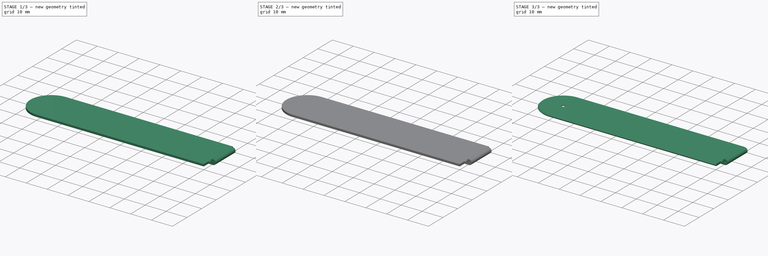
[diagram: build sequence overview — one tinted view per stage of 3, left to right]
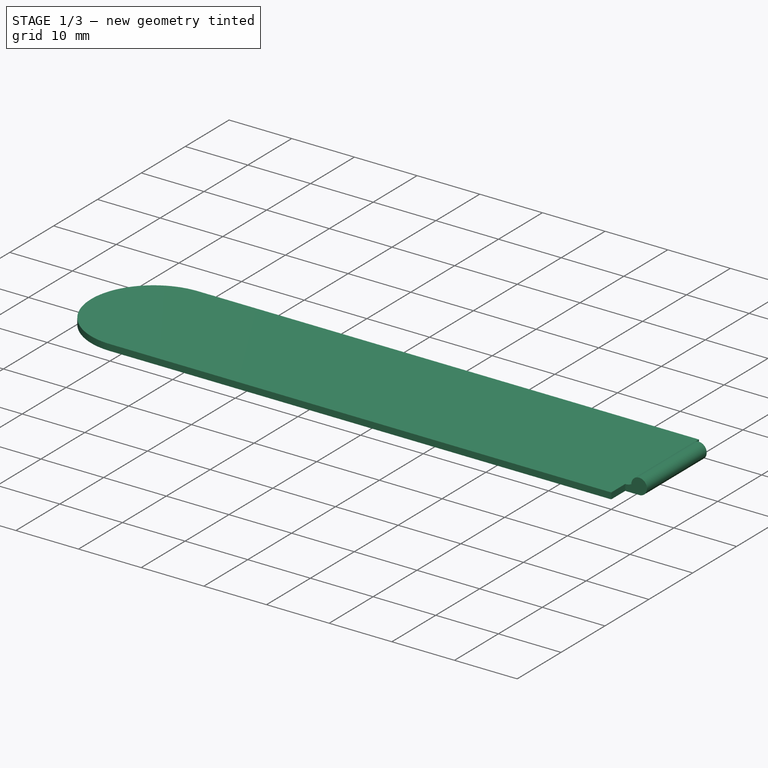
[diagram: stage 1 of 3 — iso view after this stage's code; geometry added in this stage tinted green]
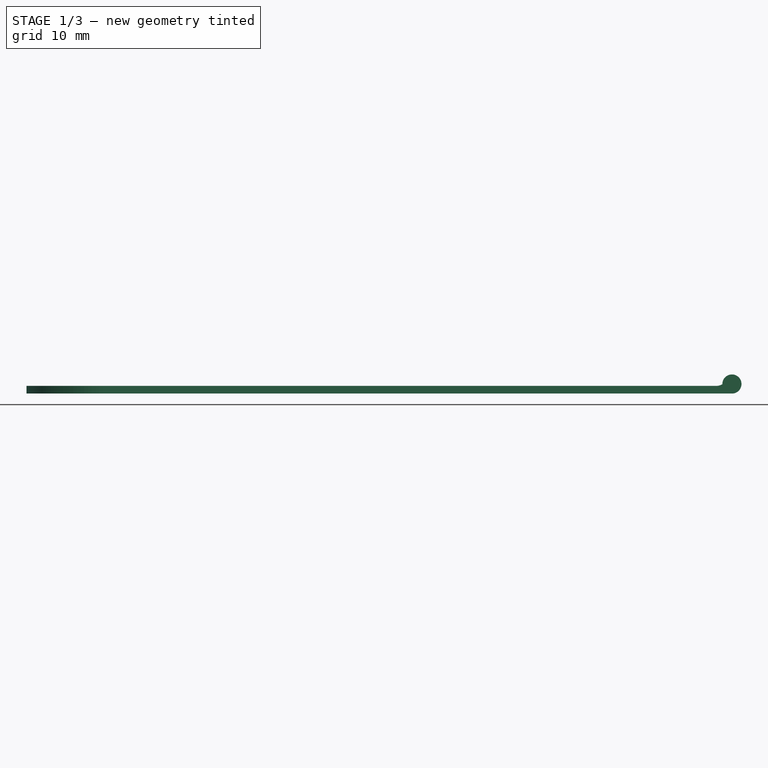
[diagram: stage 1 of 3 — front view after this stage's code; geometry added in this stage tinted green]
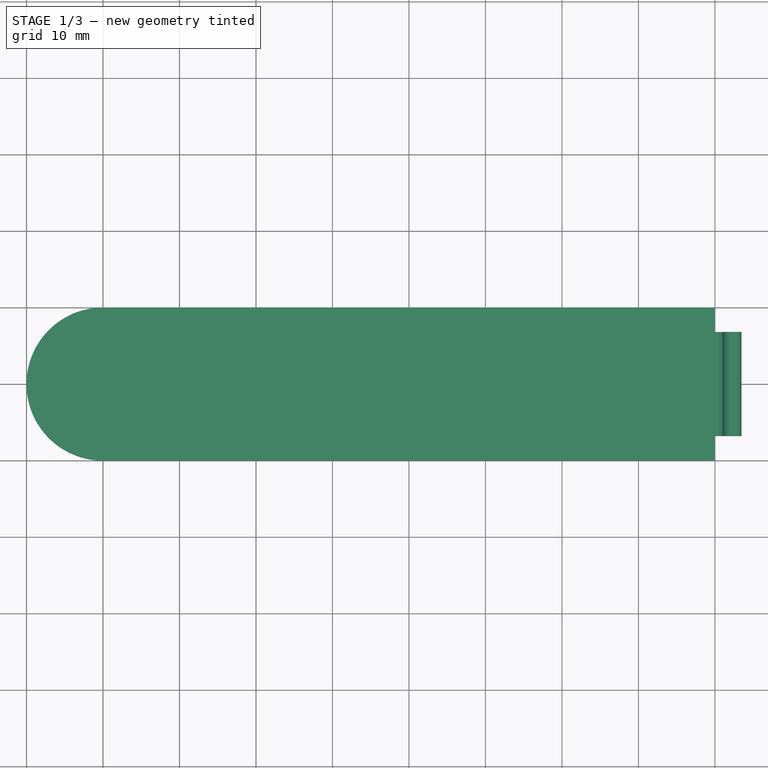
[diagram: stage 1 of 3 — top view after this stage's code; geometry added in this stage tinted green]
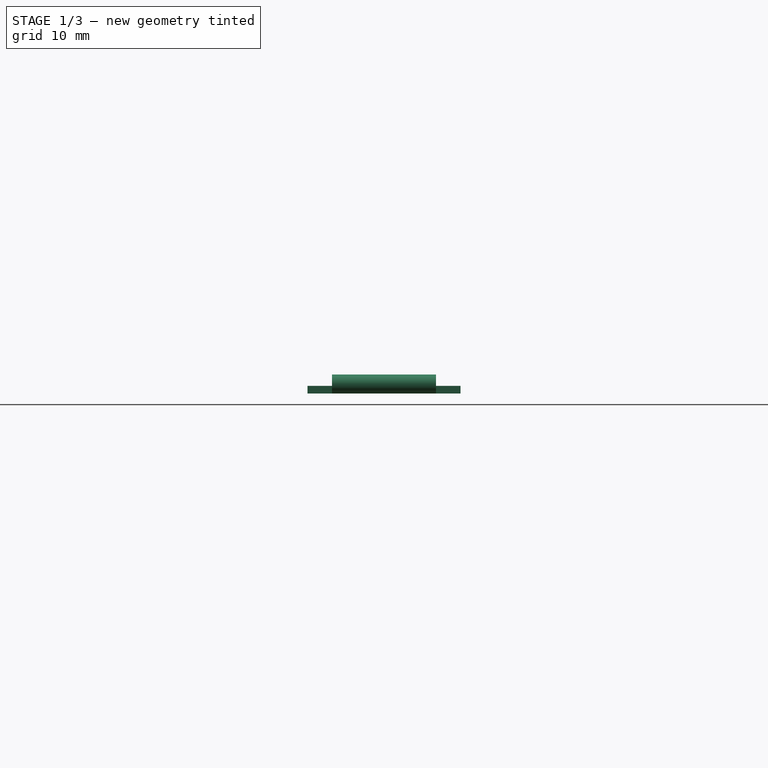
[diagram: stage 1 of 3 — right view after this stage's code; geometry added in this stage tinted green]
FCSTD DOCUMENT  (FreeCAD 0.19R)
Label: right-band
License: All rights reserved
LicenseURL: http://en.wikipedia.org/wiki/All_rights_reserved
objects: PartDesign::SubtractiveCylinder×3, Sketcher::SketchObject×2, PartDesign::Pad×2, PartDesign::Chamfer×1, PartDesign::Body×1
note: 14 computed .brp shape members not serialized (recipe doc carries the construction recipe); baked Part::Feature solids carry a one-line shape summary decoded from their .brp

FEATURE [Sketcher::SketchObject] Sketch  label="Sketch_base"
  sketch-geometry (4):
    g0: LineSegment StartX=0 StartY=10 StartZ=0 EndX=80 EndY=10 EndZ=0
    g1: LineSegment StartX=1.669e-13 StartY=-10 StartZ=0 EndX=80 EndY=-10 EndZ=0
    g2: LineSegment StartX=80 StartY=10 StartZ=0 EndX=80 EndY=-10 EndZ=0
    g3: ArcOfCircle CenterX=0 CenterY=0 CenterZ=0 NormalX=0 NormalY=0 NormalZ=1 AngleXU=0 Radius=10 StartAngle=1.5708 EndAngle=4.71239
  constraints (11):
    c: PointOnObject(g0,g-2)
    c: Horizontal(g0)
    c: PointOnObject(g1,g-2)
    c: Symmetric(g1,g0,g-1)
    c: Coincident(g1,g2)
    c: Coincident(g0,g2)
    c: Coincident(g3,g-1)
    c: Coincident(g3,g0)
    c: Coincident(g3,g1)
    c: DistanceX(g0,g0) = 80
    c: DistanceY(g2,g2) = 20
FEATURE [PartDesign::Pad] Pad  label="base"
  Length = 1
  Length2 = 100
  Profile = -> Sketch
  Type = 0
FEATURE [Sketcher::SketchObject] Sketch003  label="Sketch_pin"
  ExternalGeometry = -> [Sketch]
  MapMode = 3
  Placement = pos=(0,0,0) rot=(1,0,0;1.5708rad)
  Support = -> [Sketch]
  sketch-geometry (7):
    g0: LineSegment StartX=80 StartY=-2.2e-15 StartZ=0 EndX=82.25 EndY=-2.2e-15 EndZ=0
    g1: LineSegment StartX=80 StartY=1 StartZ=0 EndX=80 EndY=-2.2e-15 EndZ=0
    g2: LineSegment [constr] StartX=80 StartY=1 StartZ=0 EndX=80.9723 EndY=1 EndZ=0
    g3: LineSegment [constr] StartX=80.9723 StartY=1.23384 StartZ=0 EndX=80.9723 EndY=1 EndZ=0
    g4: ArcOfCircle CenterX=82.2222 CenterY=1.24969 CenterZ=0 NormalX=0 NormalY=0 NormalZ=1 AngleXU=0 Radius=1.25 StartAngle=4.73465 EndAngle=9.43746
    g5: LineSegment [constr] StartX=80 StartY=1 StartZ=0 EndX=80.9723 EndY=1.23384 EndZ=0
    g6: ArcOfCircle CenterX=80.1093 CenterY=2.68371 CenterZ=0 NormalX=0 NormalY=0 NormalZ=1 AngleXU=0 Radius=1.68725 StartAngle=4.64756 EndAngle=5.24928
  constraints (20):
    c: Coincident(g1,g0)
    c: Horizontal(g0)
    c: Coincident(g-3,g0)
    c: Horizontal(g2)
    c: Vertical(g3)
    c: Coincident(g2,g3)
    c: Coincident(g1,g2)
    c: Coincident(g4,g0)
    c: Coincident(g3,g4)
    c: Coincident(g5,g1)
    c: Coincident(g5,g3)
    c: DistanceY(g1,g1) = 1
    c: Coincident(g6,g1)
    c: Coincident(g6,g4)
    c: Radius(g4) = 1.25
    c: DistanceX(g0,g0) = 2.25
    c: Distance(g1,g4) = 1
    c: Vertical(g1)
    c: DistanceX(g4) = 82.2222
    c: DistanceX(g6) = 80.1093
FEATURE [PartDesign::Pad] Pad001  label="watch_connector_base"
  BaseFeature = -> Pad
  Length = 6.8
  Length2 = 6.8
  Profile = -> Sketch003
  Type = 4
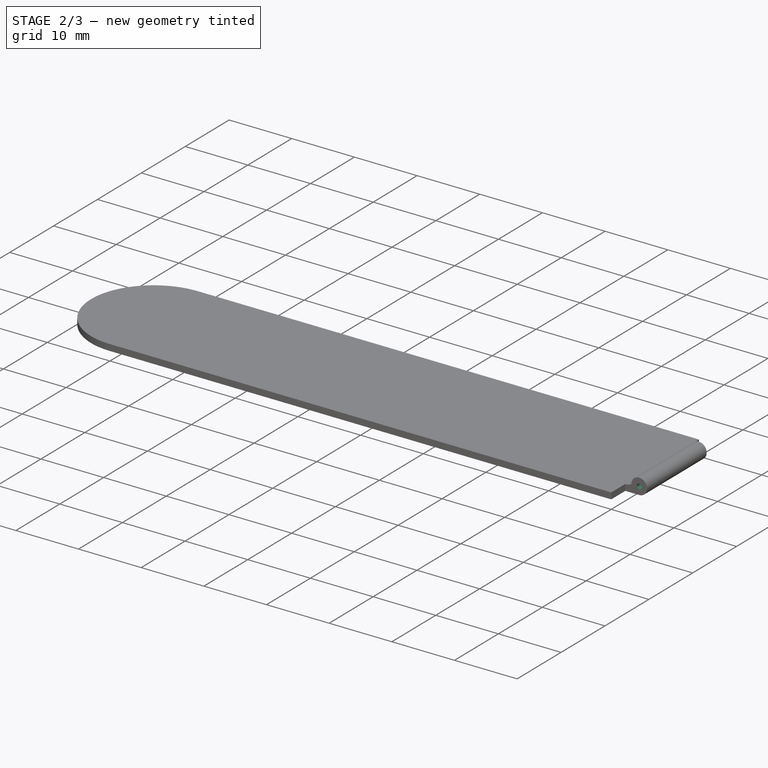
[diagram: stage 2 of 3 — iso view after this stage's code; geometry added in this stage tinted green]
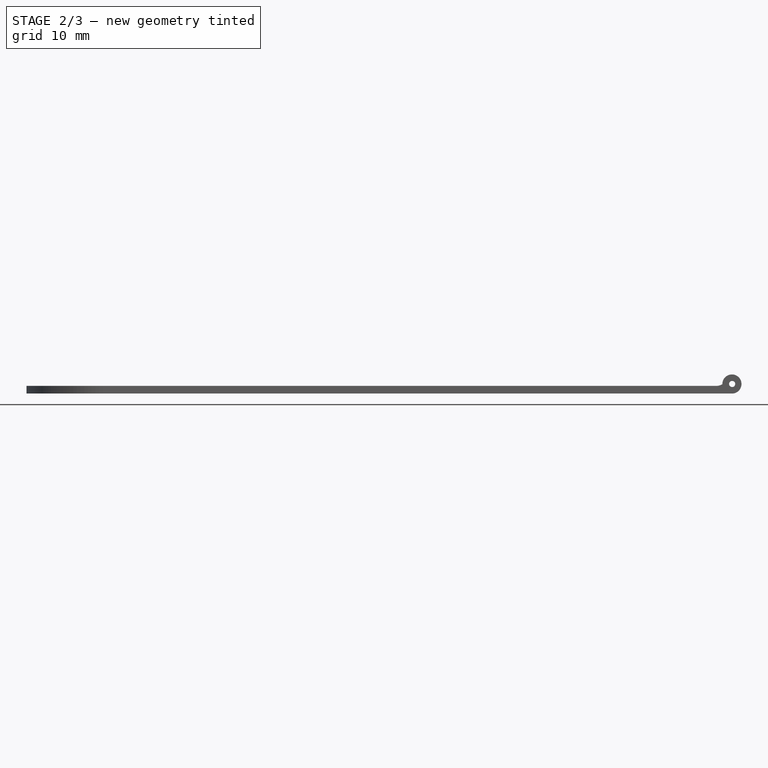
[diagram: stage 2 of 3 — front view after this stage's code; geometry added in this stage tinted green]
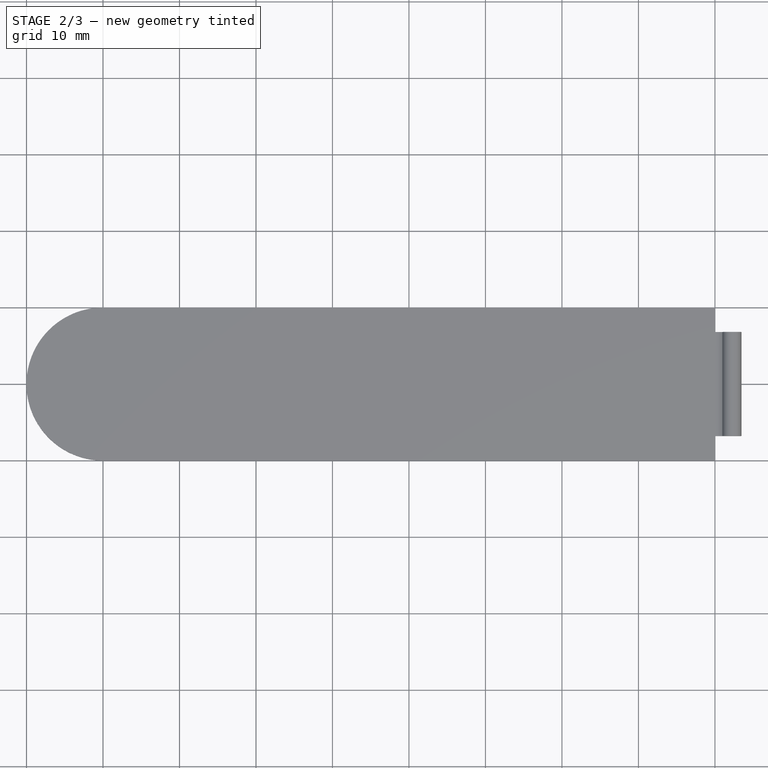
[diagram: stage 2 of 3 — top view after this stage's code; geometry added in this stage tinted green]
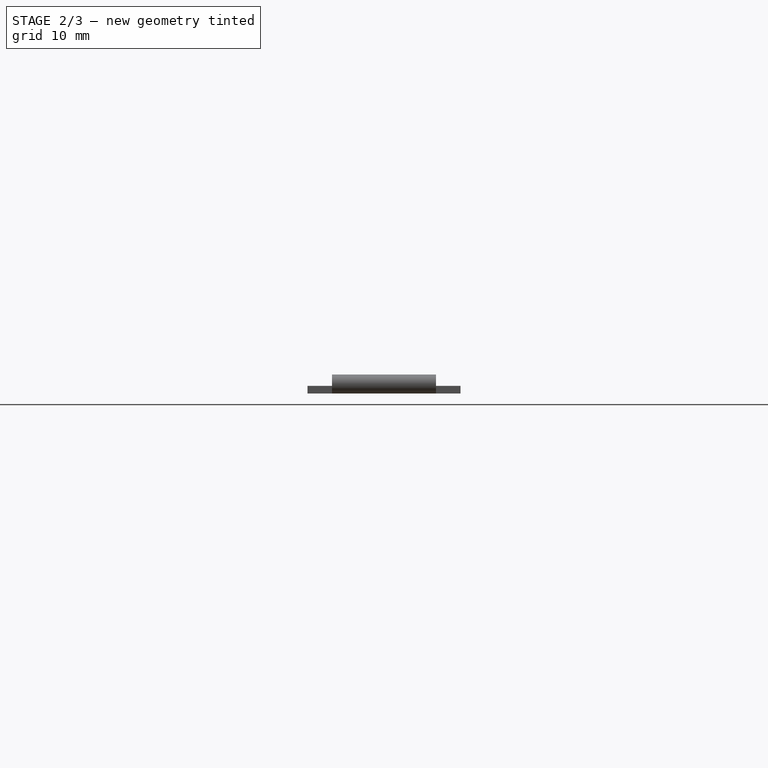
[diagram: stage 2 of 3 — right view after this stage's code; geometry added in this stage tinted green]
FEATURE [PartDesign::SubtractiveCylinder] Cylinder  label="watch_connector_pin"
  Angle = 360
  AttacherType = Attacher::AttachEngine3D
  AttachmentOffset = pos=(82.25,6.8,1.25) rot=(1,0,0;1.5708rad)
  BaseFeature = -> Pad001
  Height = 13.6
  MapMode = 5
  Placement = pos=(82.25,6.8,1.25) rot=(1,0,0;1.5708rad)
  Radius = 0.4
  Support = -> [XY_Plane]
FEATURE [PartDesign::SubtractiveCylinder] Cylinder003  label="pin-pad"
  Angle = 360
  AttacherType = Attacher::AttachEngine3D
  BaseFeature = -> Cylinder
  Height = 0.6
  MapMode = 2
  Radius = 2.5
  Support = -> [X_Axis]
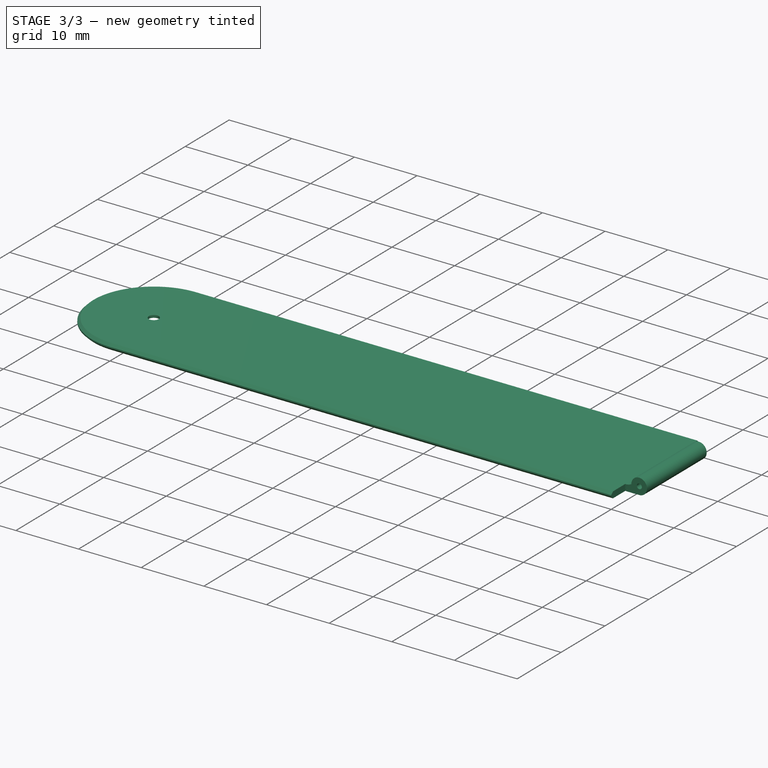
[diagram: stage 3 of 3 — iso view after this stage's code; geometry added in this stage tinted green]
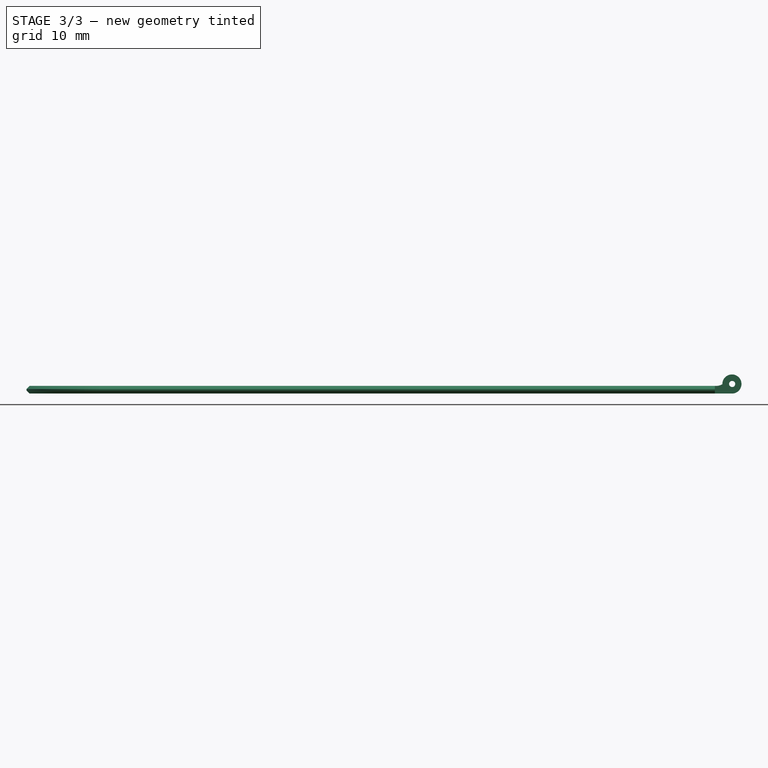
[diagram: stage 3 of 3 — front view after this stage's code; geometry added in this stage tinted green]
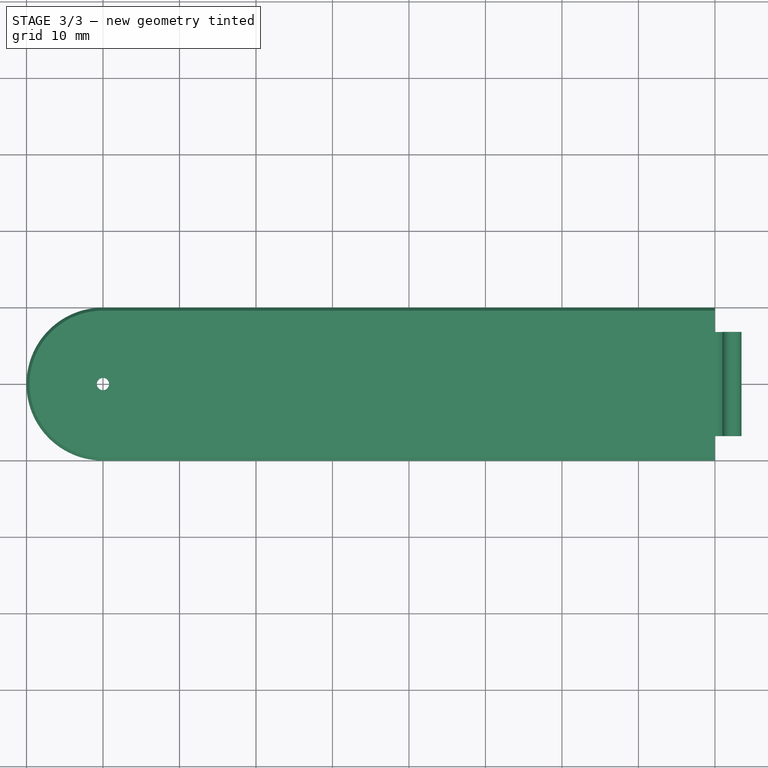
[diagram: stage 3 of 3 — top view after this stage's code; geometry added in this stage tinted green]
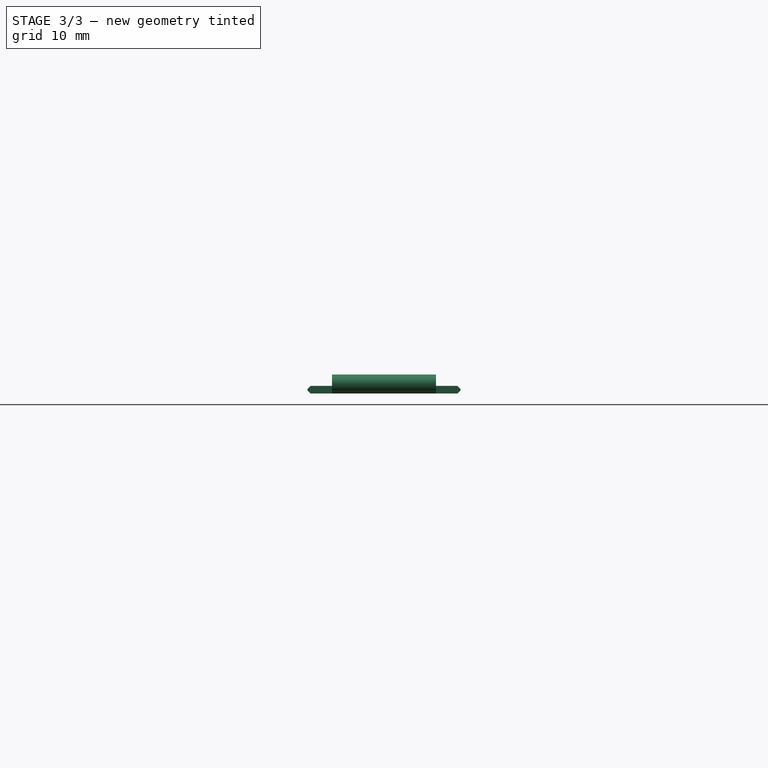
[diagram: stage 3 of 3 — right view after this stage's code; geometry added in this stage tinted green]
FEATURE [PartDesign::SubtractiveCylinder] Cylinder004  label="pin-hole-top"
  Angle = 360
  AttacherType = Attacher::AttachEngine3D
  AttachmentOffset = pos=(0,0,0.6) rot=(0,0,1;0rad)
  BaseFeature = -> Cylinder003
  Height = 0.4
  MapMode = 2
  Placement = pos=(0,0,0.6) rot=(0,0,1;0rad)
  Radius = 0.8
  Support = -> [X_Axis]
FEATURE [PartDesign::Chamfer] Chamfer  label="chamfer_edges"
  Base = -> Cylinder004 [Edge15,Edge7,Edge4,Edge3,Edge6,Edge11]
  BaseFeature = -> Cylinder004
  Placement = pos=(0,0,0.6) rot=(0,0,1;0rad)
  Size = 0.4
FEATURE [PartDesign::Body] Body
  Group = -> [Sketch,Pad,Pad001,Cylinder,Cylinder003,Cylinder004,Chamfer]
  Origin = -> Origin
  Tip = -> Chamfer
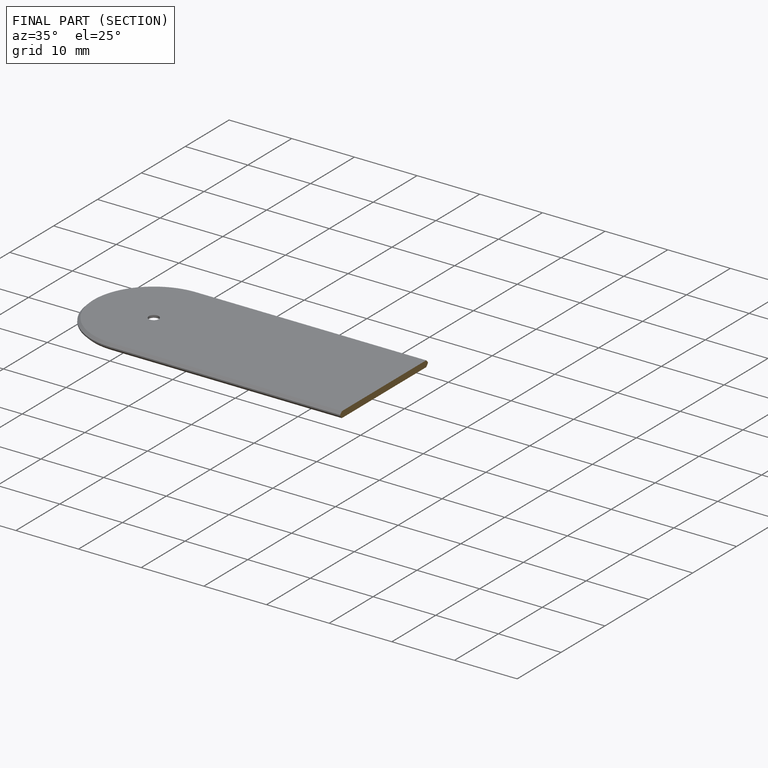
[diagram: finished part — half-section view (interior)]
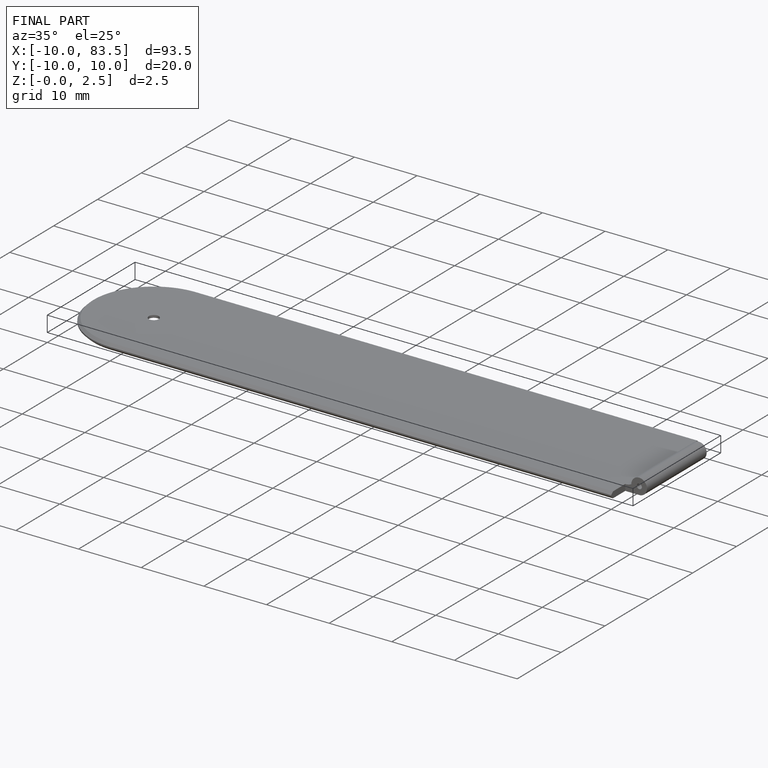
[diagram: finished part — iso view with bounding-box wireframe]
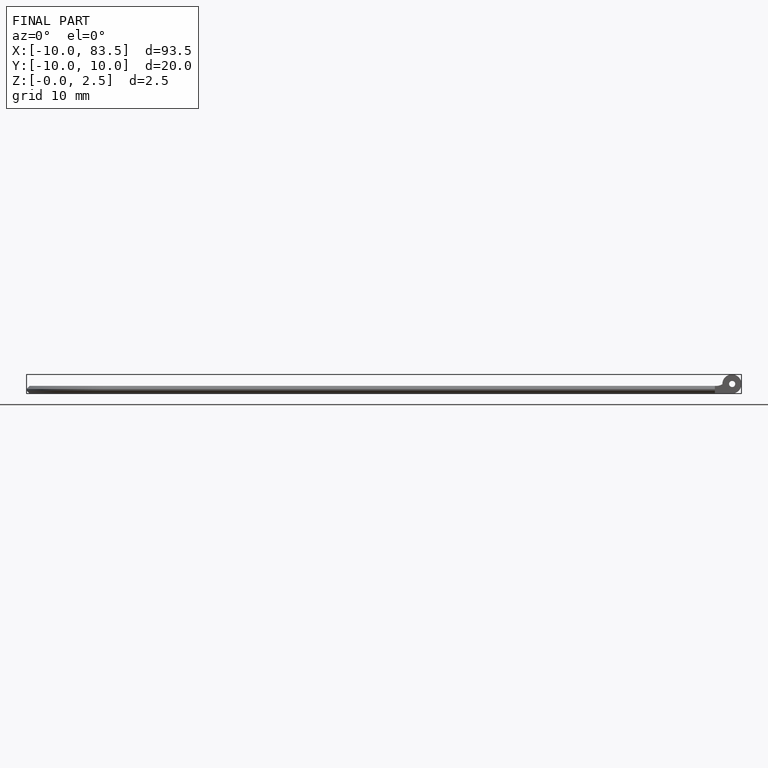
[diagram: finished part — front view with bounding-box wireframe]
